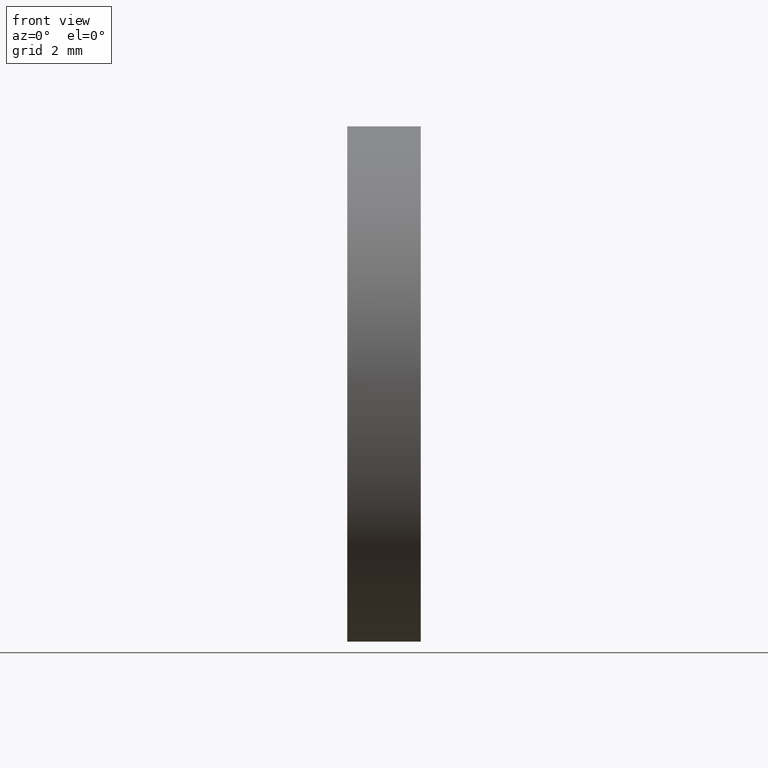
[diagram: clean part render]
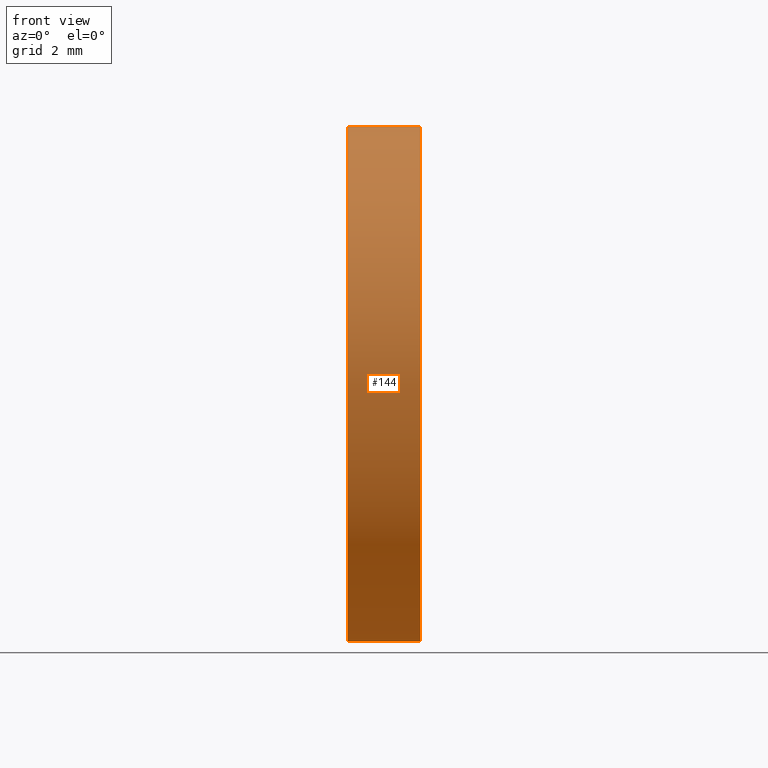
[diagram: same view with one face highlighted and labeled with its STEP entity id]
A machine part, front view. The second image highlights one B-rep face of the part: STEP entity #144.
In plain terms, the highlighted cylindrical surface (partial cylindrical patch) has radius 8 mm, axis along (-1, -0, -0).
Its self-contained STEP definition (entity closure, byte-faithful):
#1 = ORIENTED_EDGE ( 'NONE', *, *, #43, .F. ) ;
#4 = AXIS2_PLACEMENT_3D ( 'NONE', #8, #86, #18 ) ;
#7 = DIRECTION ( 'NONE',  ( 0.0000000000000000000, 0.0000000000000000000, 1.000000000000000000 ) ) ;
#8 = CARTESIAN_POINT ( 'NONE',  ( 44.31915269315436500, 26.08904114919495900, 0.0000000000000000000 ) ) ;
#9 = ORIENTED_EDGE ( 'NONE', *, *, #85, .F. ) ;
#18 = DIRECTION ( 'NONE',  ( 0.0000000000000000000, 0.0000000000000000000, 1.000000000000000000 ) ) ;
#20 = AXIS2_PLACEMENT_3D ( 'NONE', #45, #87, #7 ) ;
#22 = DIRECTION ( 'NONE',  ( -1.000000000000000000, -0.0000000000000000000, -0.0000000000000000000 ) ) ;
#24 = VERTEX_POINT ( 'NONE', #139 ) ;
#31 = AXIS2_PLACEMENT_3D ( 'NONE', #154, #22, #66 ) ;
#42 = VECTOR ( 'NONE', #47, 1000.000000000000000 ) ;
#43 = EDGE_CURVE ( 'NONE', #99, #146, #94, .T. ) ;
#44 = CIRCLE ( 'NONE', #20, 7.999999999999996400 ) ;
#45 = CARTESIAN_POINT ( 'NONE',  ( 46.59844384267000800, 26.08904114919495900, 0.0000000000000000000 ) ) ;
#47 = DIRECTION ( 'NONE',  ( -1.000000000000000000, -0.0000000000000000000, -0.0000000000000000000 ) ) ;
#52 = CYLINDRICAL_SURFACE ( 'NONE', #31, 8.000000000000000000 ) ;
#60 = CARTESIAN_POINT ( 'NONE',  ( 44.31915269315436500, 26.08904114919495900, -8.000000000000003600 ) ) ;
#66 = DIRECTION ( 'NONE',  ( 0.0000000000000000000, 0.0000000000000000000, 1.000000000000000000 ) ) ;
#72 = EDGE_CURVE ( 'NONE', #126, #24, #44, .T. ) ;
#76 = ORIENTED_EDGE ( 'NONE', *, *, #72, .T. ) ;
#84 = ORIENTED_EDGE ( 'NONE', *, *, #95, .T. ) ;
#85 = EDGE_CURVE ( 'NONE', #126, #99, #104, .T. ) ;
#86 = DIRECTION ( 'NONE',  ( -1.000000000000000000, -0.0000000000000000000, -0.0000000000000000000 ) ) ;
#87 = DIRECTION ( 'NONE',  ( -1.000000000000000000, -0.0000000000000000000, -0.0000000000000000000 ) ) ;
#94 = CIRCLE ( 'NONE', #4, 8.000000000000003600 ) ;
#95 = EDGE_CURVE ( 'NONE', #24, #146, #107, .T. ) ;
#99 = VERTEX_POINT ( 'NONE', #60 ) ;
#104 = LINE ( 'NONE', #161, #42 ) ;
#107 = LINE ( 'NONE', #125, #118 ) ;
#118 = VECTOR ( 'NONE', #150, 1000.000000000000000 ) ;
#125 = CARTESIAN_POINT ( 'NONE',  ( 42.44986111413682300, 26.08904114919495900, 8.000000000000000000 ) ) ;
#126 = VERTEX_POINT ( 'NONE', #128 ) ;
#128 = CARTESIAN_POINT ( 'NONE',  ( 46.59844384267000800, 26.08904114919495900, -7.999999999999979600 ) ) ;
#139 = CARTESIAN_POINT ( 'NONE',  ( 46.59844384267000800, 26.08904114919495900, 7.999999999999979600 ) ) ;
#142 = EDGE_LOOP ( 'NONE', ( #9, #76, #84, #1 ) ) ;
#144 = ADVANCED_FACE ( 'NONE', ( #159 ), #52, .T. ) ;
#146 = VERTEX_POINT ( 'NONE', #157 ) ;
#150 = DIRECTION ( 'NONE',  ( -1.000000000000000000, -0.0000000000000000000, -0.0000000000000000000 ) ) ;
#154 = CARTESIAN_POINT ( 'NONE',  ( 42.44986111413682300, 26.08904114919495900, 0.0000000000000000000 ) ) ;
#157 = CARTESIAN_POINT ( 'NONE',  ( 44.31915269315436500, 26.08904114919495900, 8.000000000000003600 ) ) ;
#159 = FACE_OUTER_BOUND ( 'NONE', #142, .T. ) ;
#161 = CARTESIAN_POINT ( 'NONE',  ( 42.44986111413682300, 26.08904114919495900, -8.000000000000000000 ) ) ;